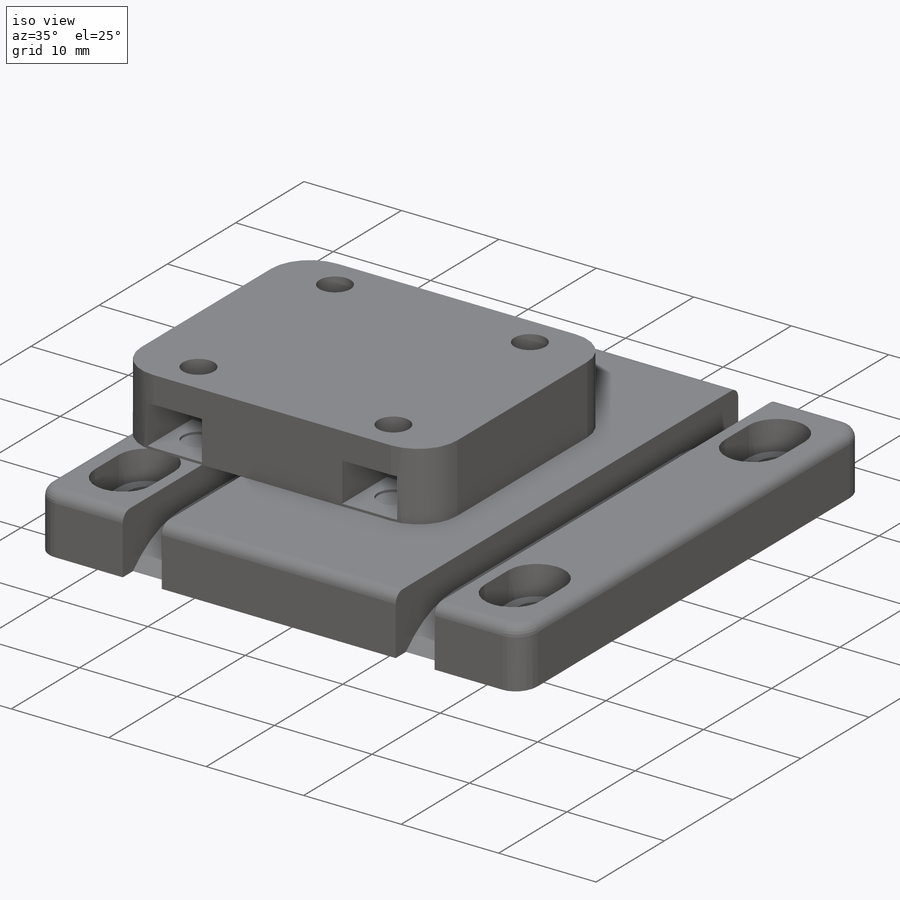
[diagram: iso view]
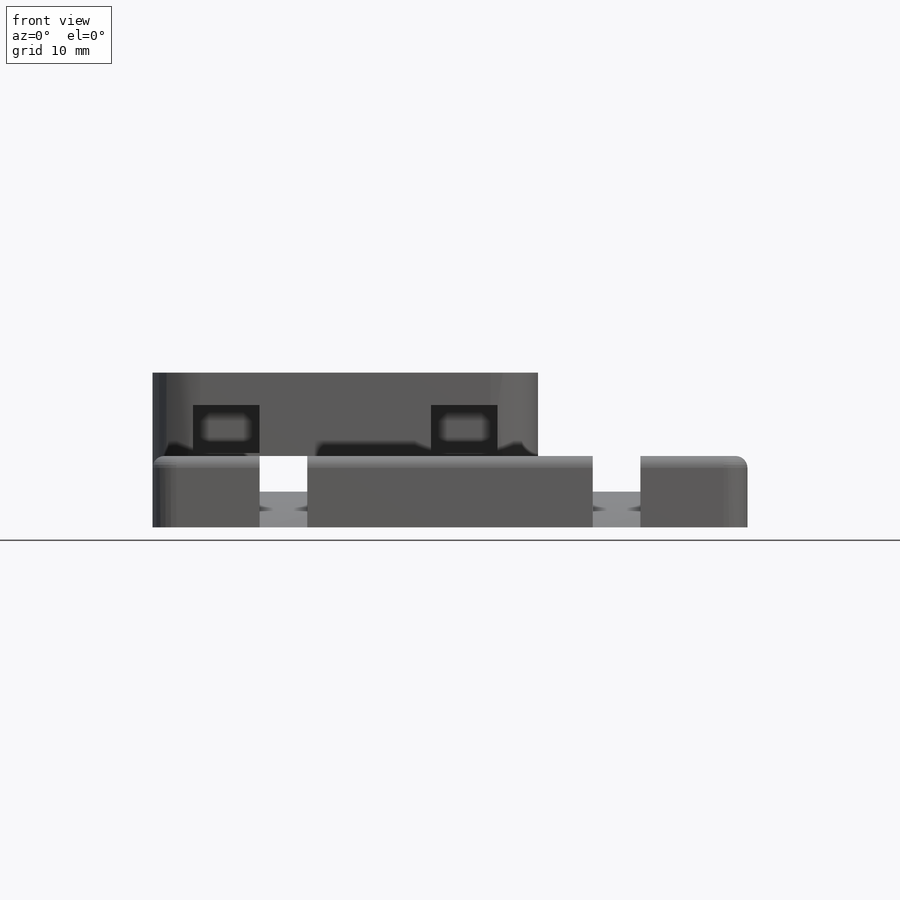
[diagram: front view]
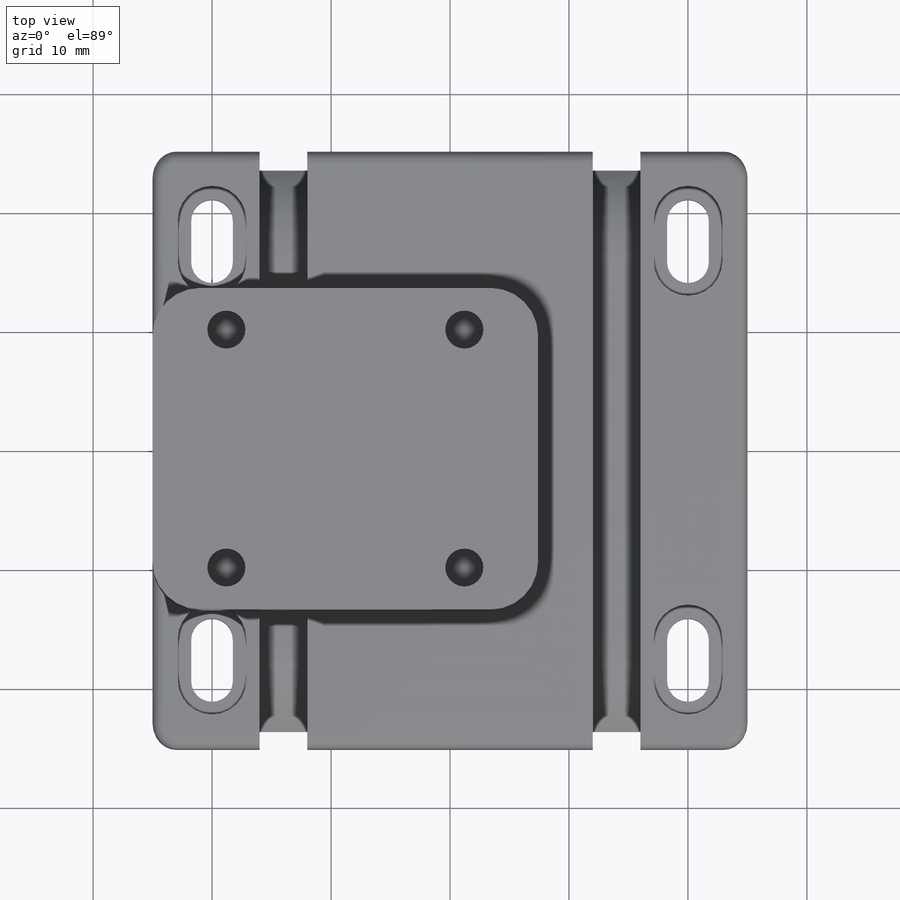
[diagram: top view]
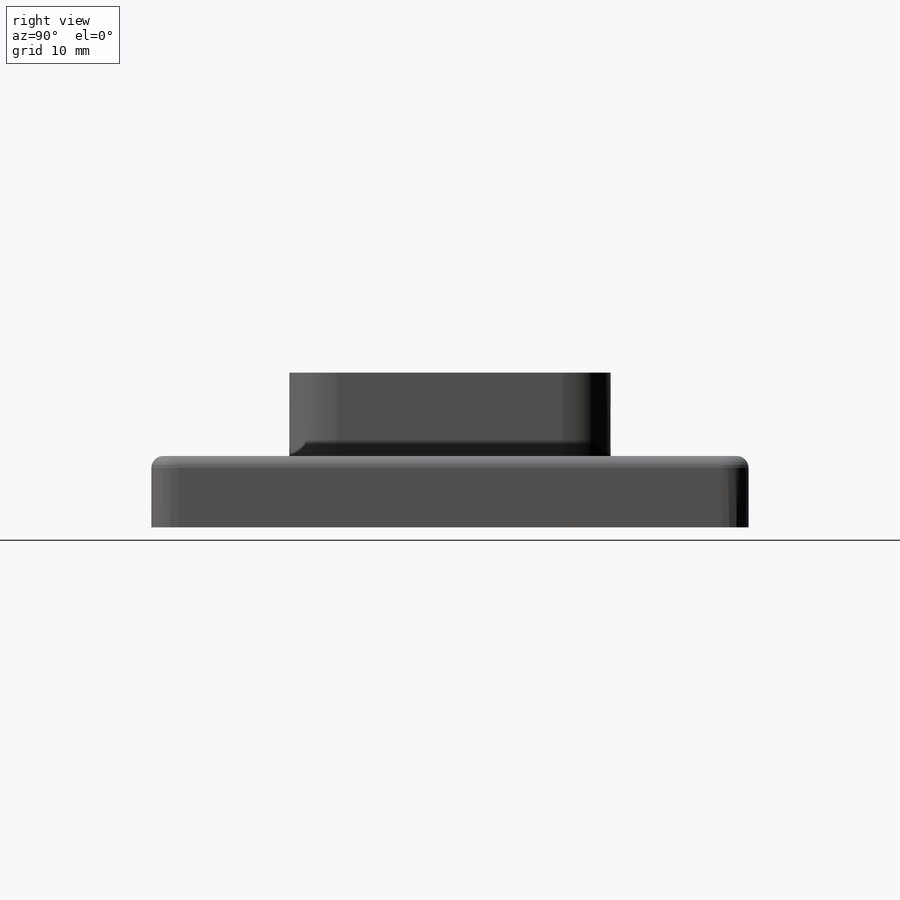
[diagram: right view]
SOLIDWORKS PART (.sldprt)
format: sldprt  version: not decoded by parser v0  size: 503,296 bytes
history: native  units: mm
features: sketch x6, extrude x4, fillet x3, cut_extrude x2, material x1, plane x1 (+13 scaffold rows collapsed)
feature tree (30):
  scaffold x13  (default folders/planes/origin — collapsed)
  material  "Material <not specified>"
  sketch  "Sketch1"  dims[D1=1.5mm D2=4.0mm D3=9.0mm]
  extrude  "Boss-Extrude1"  Depth=3mm
  sketch  "Sketch4"  dims[D1=1.375mm]
  extrude  "Boss-Extrude4"  Depth=3mm
  fillet  "Fillet3"  Radius=10mm
  sketch  "Sketch5"  dims[D1=27.0mm D2=32.4mm]
  extrude  "Boss-Extrude5"  Depth=6.9mm
  fillet  "Fillet4"  Radius=4mm
  sketch  "Sketch6"  dims[c1.D1=~3.789463mm c1.D2=~3.789463mm c1.D3=3.2mm c2.D1=20.0mm c2.D2=20.0mm]
  cut_extrude  "Cut-Extrude1"  [1 undecoded]
  plane  "Plane1"  Offset=2.75mm
  sketch  "Sketch7"  dims[D1=5.6mm D2=3.0mm]
  cut_extrude  "Cut-Extrude2"  Depth=4mm
  sketch  "Sketch8"
  extrude  "Boss-Extrude6"  Depth=0.6mm
  fillet  "Fillet5"  Radius=1mm
decode coverage: 13 of 15 modeling features carry decoded parameters
note: ~ marks probable driven/reference dimensions
note: 1 parameter value undecoded
note: suppression state not decoded; provenance and decode notes live in map.json
